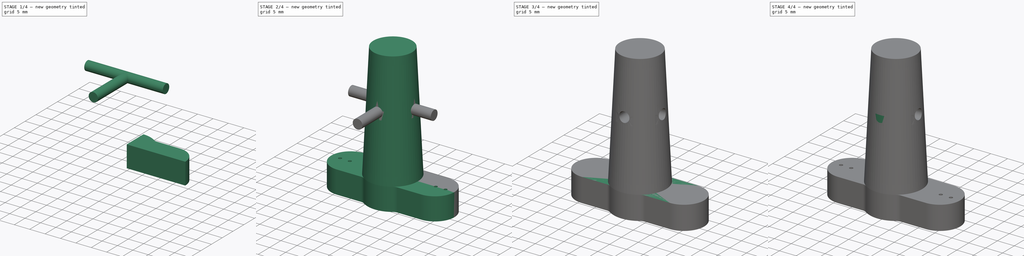
[diagram: build sequence overview — one tinted view per stage of 4, left to right]
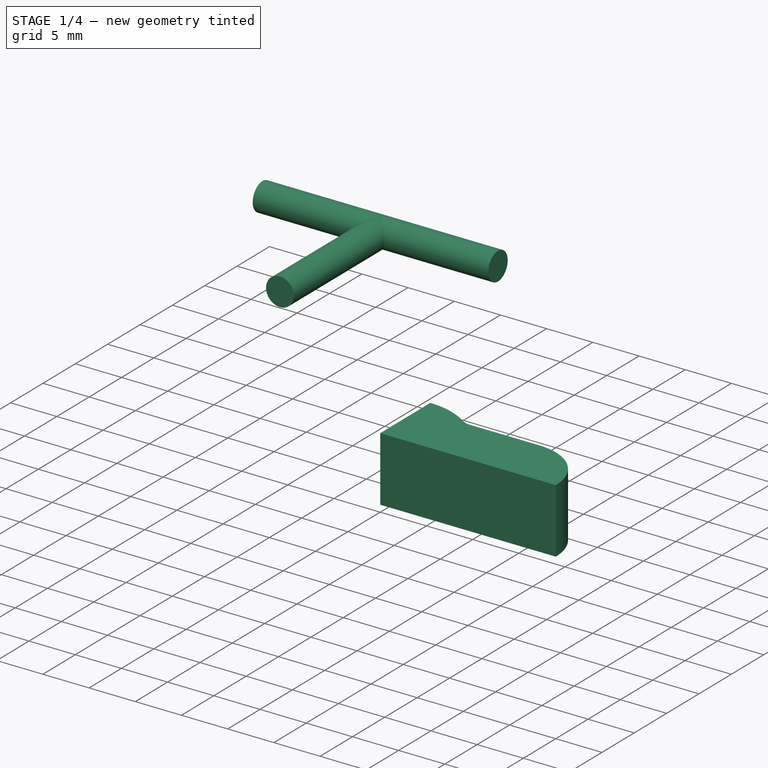
[diagram: stage 1 of 4 — iso view after this stage's code; geometry added in this stage tinted green]
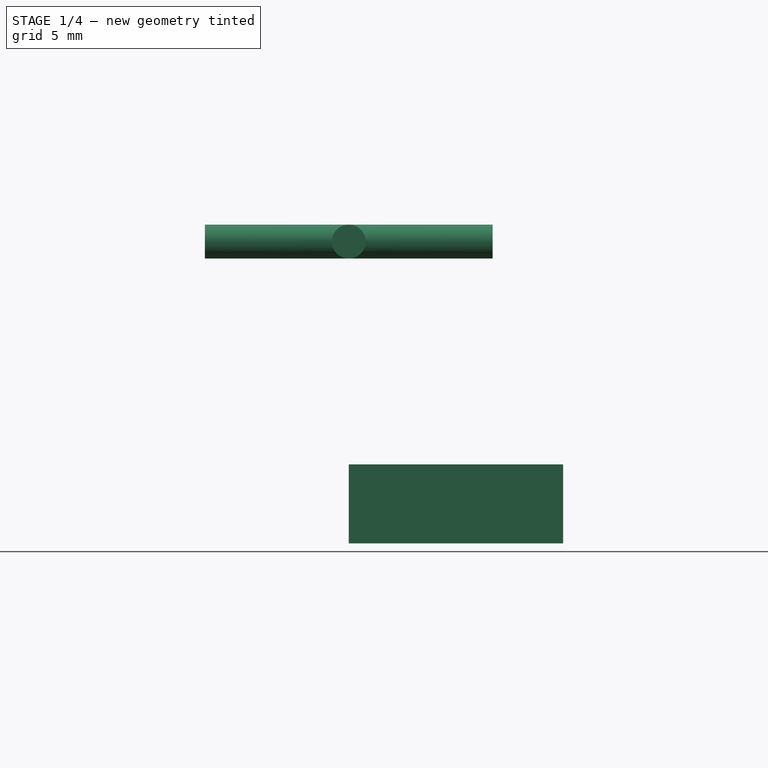
[diagram: stage 1 of 4 — front view after this stage's code; geometry added in this stage tinted green]
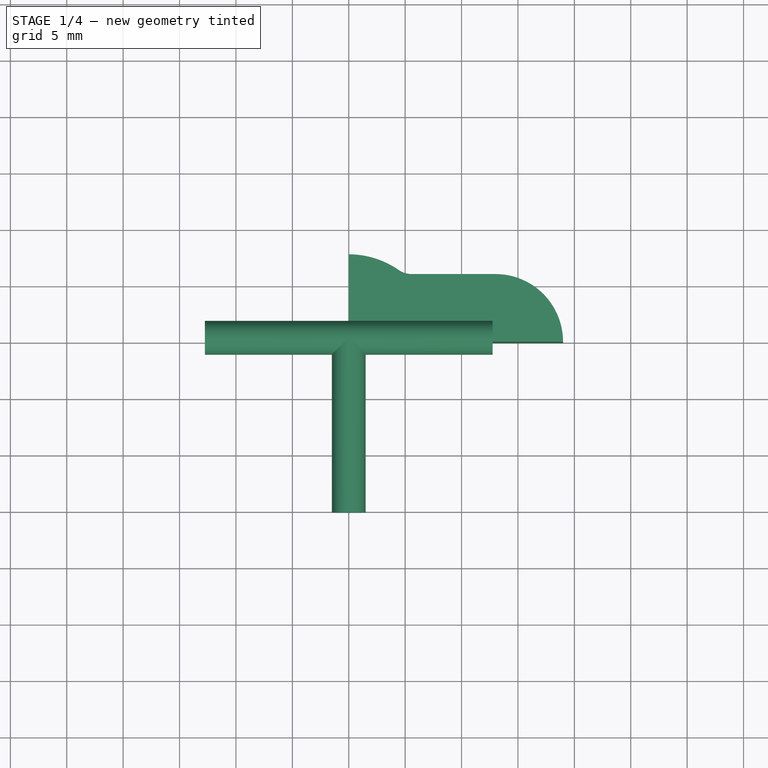
[diagram: stage 1 of 4 — top view after this stage's code; geometry added in this stage tinted green]
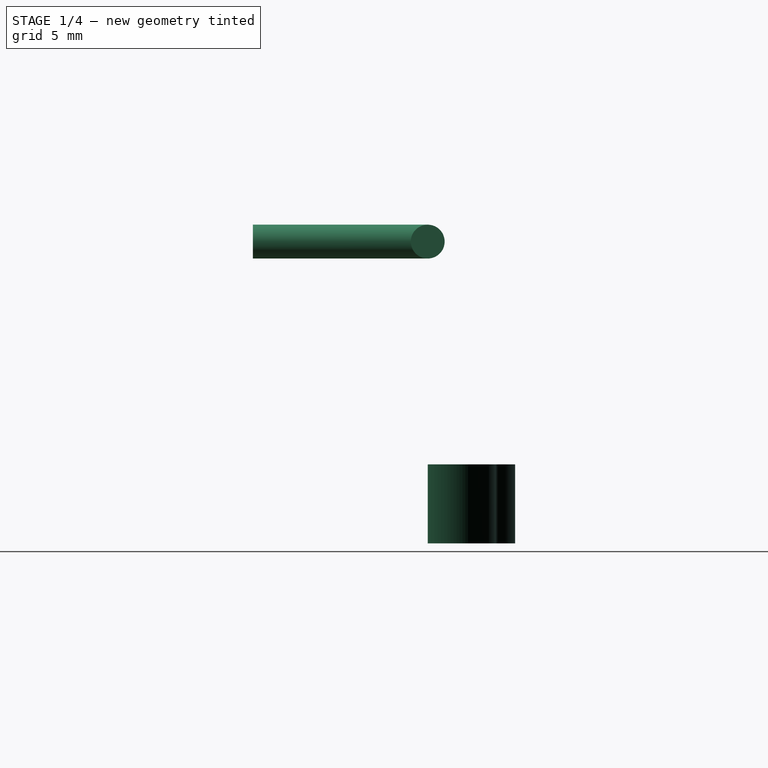
[diagram: stage 1 of 4 — right view after this stage's code; geometry added in this stage tinted green]
FCSTD DOCUMENT  (FreeCAD 0.19R24291 (Git))
Label: stopcock-servo-adaptor
License: All rights reserved
LicenseURL: http://en.wikipedia.org/wiki/All_rights_reserved
objects: Sketcher::SketchObject×9, PartDesign::Pad×4, PartDesign::Mirrored×4, PartDesign::Pocket×3, PartDesign::Body×3, PartDesign::MultiTransform×2, PartDesign::Revolution×2, App::Part×2, Spreadsheet::Sheet×1, Part::Cut×1
note: 37 computed .brp shape members not serialized (recipe doc carries the construction recipe); baked Part::Feature solids carry a one-line shape summary decoded from their .brp

FEATURE [PartDesign::Body] Body  label="stopcock-servo-adaptor"
  Group = -> [Sketch,Pad,MultiTransform,Mirrored,Mirrored001,Sketch001,Revolution,Sketch002,Pocket,Sketch007,Pocket002]
  Origin = -> Origin
  Tip = -> Pocket002
FEATURE [App::Part] Part  label="two-way"
  Group = -> [Body]
  Origin = -> Origin001
FEATURE [Sketcher::SketchObject] Sketch008
  FullyConstrained = true
  MapMode = 5
  Support = -> [XY_Plane]
  expr: Constraints[11] = Spreadsheet.handle_len / 2
  expr: Constraints[9] = Spreadsheet.stopcock_OD / 2
  expr: Constraints[10] = Spreadsheet.stopcock_width / 2
  sketch-geometry (6):
    g0: LineSegment StartX=5.57337 StartY=6 StartZ=0 EndX=13 EndY=6 EndZ=0
    g1: ArcOfCircle CenterX=0 CenterY=0 CenterZ=0 NormalX=0 NormalY=0 NormalZ=1 AngleXU=0 Radius=7.75 StartAngle=0.962308 EndAngle=1.5708
    g2: ArcOfCircle CenterX=13 CenterY=0 CenterZ=0 NormalX=0 NormalY=0 NormalZ=1 AngleXU=0 Radius=6 StartAngle=0 EndAngle=1.5708
    g3: ArcOfCircle CenterX=5.57337 CenterY=8 CenterZ=0 NormalX=0 NormalY=0 NormalZ=1 AngleXU=0 Radius=2 StartAngle=4.1039 EndAngle=4.71239
    g4: LineSegment StartX=0 StartY=7.75 StartZ=0 EndX=0 EndY=0 EndZ=0
    g5: LineSegment StartX=0 StartY=0 StartZ=0 EndX=19 EndY=0 EndZ=0
  constraints (16):
    c: Horizontal(g0)
    c: Coincident(g1,g-1)
    c: PointOnObject(g1,g-2)
    c: PointOnObject(g2,g-1)
    c: PointOnObject(g2,g-1)
    c: Tangent(g2,g0) = 1.5708
    c: Tangent(g0,g3) = -1.5708
    c: Tangent(g1,g3) = 1.5708
    c: Radius(g3) = 2
    c: Radius(g1) = 7.75
    c: DistanceY(g-1,g0) = 6
    c: DistanceX(g-1,g2) = 19
    c: Coincident(g4,g1)
    c: Coincident(g4,g1)
    c: Coincident(g5,g1)
    c: Coincident(g5,g2)
FEATURE [PartDesign::Pad] Pad001
  Direction = (1,1,1)
  Length = 7
  Length2 = 100
  Profile = -> Sketch008
  Type = 0
  expr: Length = Spreadsheet.handle_thicc
FEATURE [PartDesign::Body] Body001  label="stopcock-servo-adaptor001"
  Group = -> [Sketch008,Pad001,MultiTransform001,Mirrored002,Mirrored003,Sketch009,Revolution001,Sketch010,Pocket003]
  Origin = -> Origin003
  Tip = -> Pocket003
FEATURE [Sketcher::SketchObject] Sketch011
  FullyConstrained = true
  MapMode = 5
  Placement = pos=(0,0,0) rot=(0.57735,0.57735,0.57735;2.0944rad)
  Support = -> [YZ_Plane004]
  expr: Constraints[1] = Spreadsheet.drill_hole_height
  expr: Constraints[2] = Spreadsheet.drill_hole_diam / 2
  sketch-geometry (1):
    g0: Circle CenterX=0 CenterY=26.75 CenterZ=0 NormalX=0 NormalY=0 NormalZ=1 AngleXU=0 Radius=1.5
  constraints (3):
    c: PointOnObject(g0,g-2)
    c: DistanceY(g-1,g0) = 26.75
    c: Radius(g0) = 1.5
FEATURE [PartDesign::Pad] Pad002
  Direction = (1,1,1)
  Length = 25.5
  Length2 = 100
  Midplane = true
  Placement = pos=(0,0,0) rot=(0.57735,0.57735,0.57735;2.0944rad)
  Profile = -> Sketch011
  Type = 0
  expr: Length = Spreadsheet.stopcock_OD + 10
FEATURE [Sketcher::SketchObject] Sketch012
  FullyConstrained = true
  MapMode = 5
  Placement = pos=(0,0,0) rot=(1,0,0;1.5708rad)
  Support = -> [XZ_Plane004]
  expr: Constraints[2] = Spreadsheet.drill_hole_height
  expr: Constraints[1] = Spreadsheet.drill_hole_diam / 2
  sketch-geometry (1):
    g0: Circle CenterX=0 CenterY=26.75 CenterZ=0 NormalX=0 NormalY=0 NormalZ=1 AngleXU=0 Radius=1.5
  constraints (3):
    c: PointOnObject(g0,g-2)
    c: Radius(g0) = 1.5
    c: DistanceY(g-1,g0) = 26.75
FEATURE [PartDesign::Pad] Pad003
  BaseFeature = -> Pad002
  Direction = (1,1,1)
  Length = 15.5
  Length2 = 100
  Placement = pos=(0,0,0) rot=(0.57735,0.57735,0.57735;2.0944rad)
  Profile = -> Sketch012
  Type = 0
  expr: Length = Spreadsheet.stopcock_OD
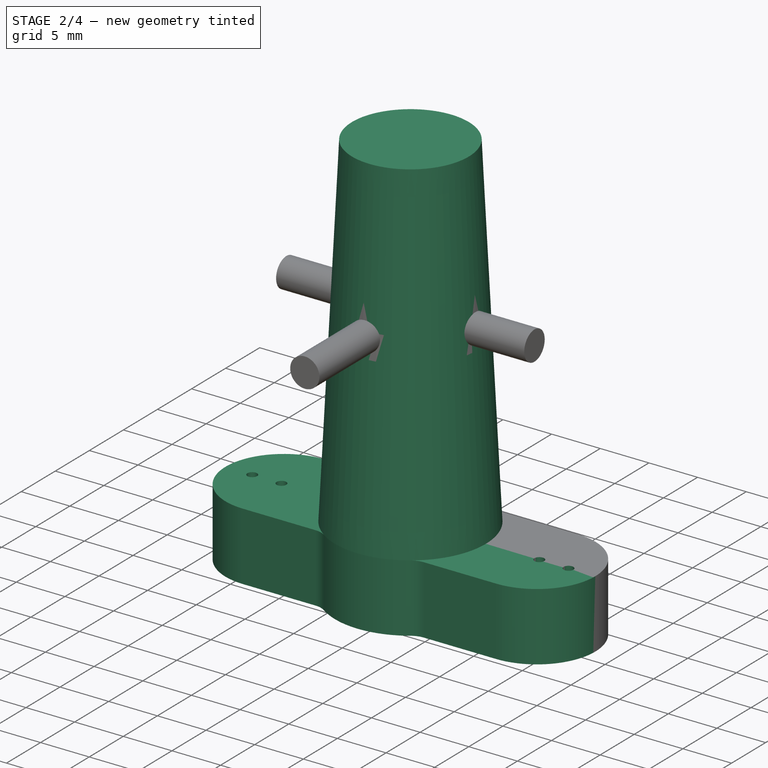
[diagram: stage 2 of 4 — iso view after this stage's code; geometry added in this stage tinted green]
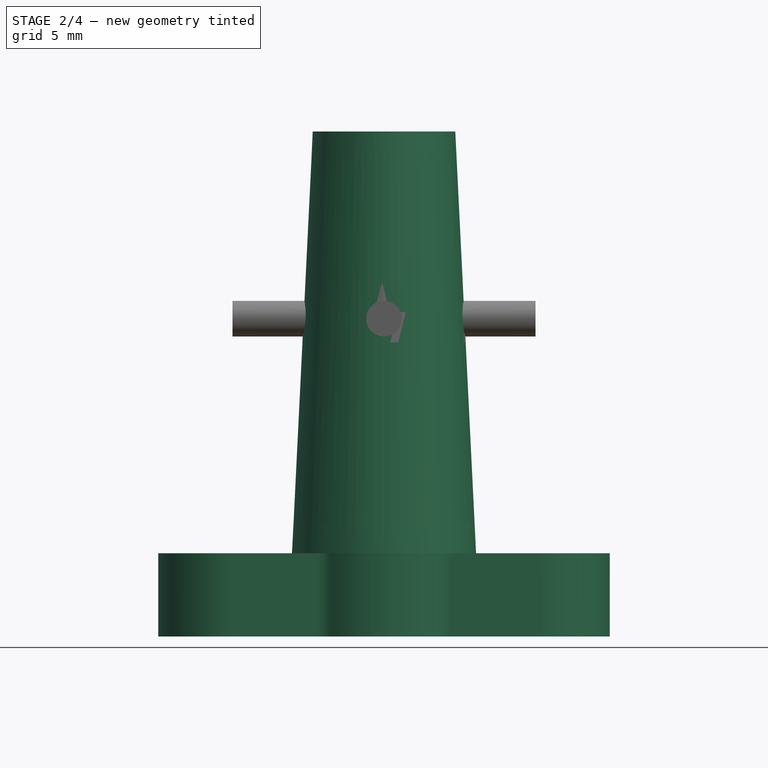
[diagram: stage 2 of 4 — front view after this stage's code; geometry added in this stage tinted green]
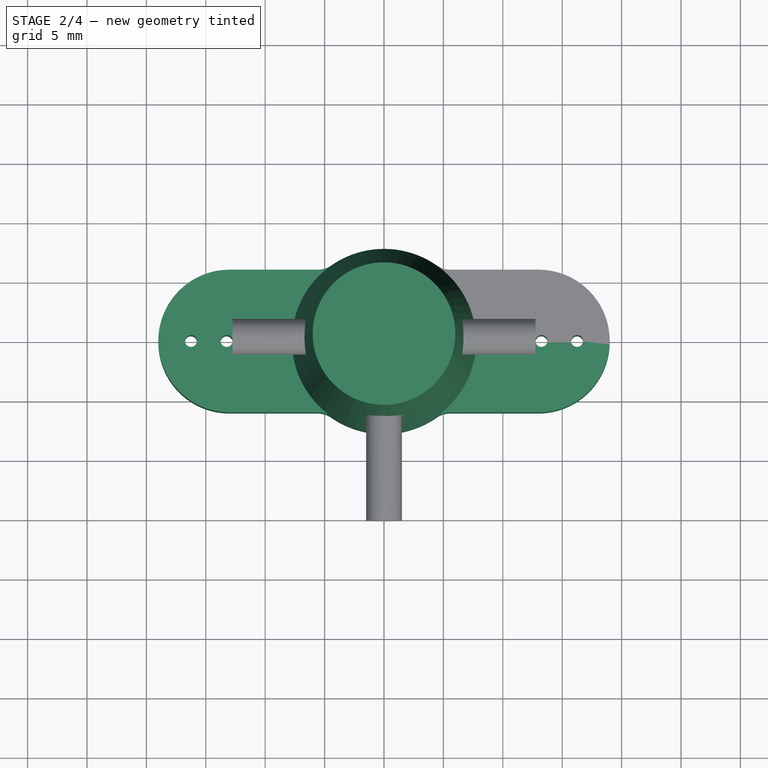
[diagram: stage 2 of 4 — top view after this stage's code; geometry added in this stage tinted green]
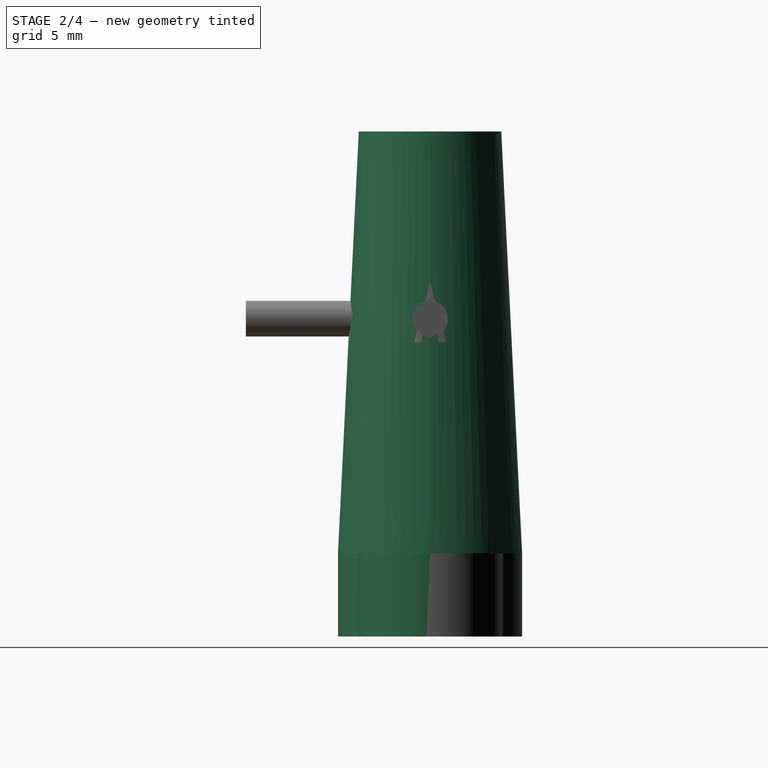
[diagram: stage 2 of 4 — right view after this stage's code; geometry added in this stage tinted green]
FEATURE [PartDesign::Mirrored] Mirrored002
  MirrorPlane = -> Sketch008 [V_Axis]
FEATURE [PartDesign::Mirrored] Mirrored003
  MirrorPlane = -> Sketch008 [H_Axis]
FEATURE [PartDesign::MultiTransform] MultiTransform001
  BaseFeature = -> Pad001
  Originals = -> [Pad001]
  Transformations = -> [Mirrored002,Mirrored003]
FEATURE [Sketcher::SketchObject] Sketch009
  FullyConstrained = true
  MapMode = 5
  Placement = pos=(0,0,0) rot=(1,0,0;1.5708rad)
  Support = -> [XZ_Plane]
  expr: Constraints[8] = Spreadsheet.handle_thicc
  expr: Constraints[9] = Spreadsheet.stopcock_len
  expr: Constraints[10] = Spreadsheet.stopcock_ID / 2
  expr: Constraints[11] = Spreadsheet.stopcock_OD / 2
  sketch-geometry (4):
    g0: LineSegment StartX=0 StartY=7 StartZ=0 EndX=0 EndY=42.5 EndZ=0
    g1: LineSegment StartX=0 StartY=42.5 StartZ=0 EndX=6 EndY=42.5 EndZ=0
    g2: LineSegment StartX=6 StartY=42.5 StartZ=0 EndX=7.75 EndY=7 EndZ=0
    g3: LineSegment StartX=7.75 StartY=7 StartZ=0 EndX=0 EndY=7 EndZ=0
  constraints (12):
    c: PointOnObject(g0,g-2)
    c: PointOnObject(g0,g-2)
    c: Coincident(g1,g0)
    c: Horizontal(g1)
    c: Coincident(g2,g1)
    c: Coincident(g3,g2)
    c: Coincident(g3,g0)
    c: Horizontal(g3)
    c: DistanceY(g-1,g0) = 7
    c: DistanceY(g0,g0) = 35.5
    c: DistanceX(g1,g1) = 6
    c: DistanceX(g3,g3) = 7.75
FEATURE [PartDesign::Revolution] Revolution001
  Angle = 360
  Axis = (0,-2e-16,1)
  Base = (0,0,0)
  BaseFeature = -> MultiTransform001
  Profile = -> Sketch009
  ReferenceAxis = -> Sketch009 [V_Axis]
FEATURE [Sketcher::SketchObject] Sketch010
  FullyConstrained = true
  MapMode = 5
  Support = -> [XY_Plane]
  sketch-geometry (4):
    g0: Circle CenterX=16.25 CenterY=0 CenterZ=0 NormalX=0 NormalY=0 NormalZ=1 AngleXU=0 Radius=0.5
    g1: Circle CenterX=13.25 CenterY=0 CenterZ=0 NormalX=0 NormalY=0 NormalZ=1 AngleXU=0 Radius=0.5
    g2: Circle CenterX=-13.25 CenterY=0 CenterZ=0 NormalX=0 NormalY=0 NormalZ=1 AngleXU=0 Radius=0.5
    g3: Circle CenterX=-16.25 CenterY=0 CenterZ=0 NormalX=0 NormalY=0 NormalZ=1 AngleXU=0 Radius=0.5
  constraints (10):
    c: PointOnObject(g0,g-1)
    c: PointOnObject(g1,g-1)
    c: Equal(g1,g3)
    c: Equal(g3,g2)
    c: Equal(g1,g0)
    c: Radius(g0) = 0.5
    c: Symmetric(g1,g2,g-2)
    c: Symmetric(g0,g3,g-1)
    c: DistanceX(g3,g0) = 32.5
    c: DistanceX(g2,g1) = 26.5
FEATURE [PartDesign::Pocket] Pocket003
  BaseFeature = -> Revolution001
  Length = 5
  Length2 = 100
  Profile = -> Sketch010
  Reversed = true
  Type = 1
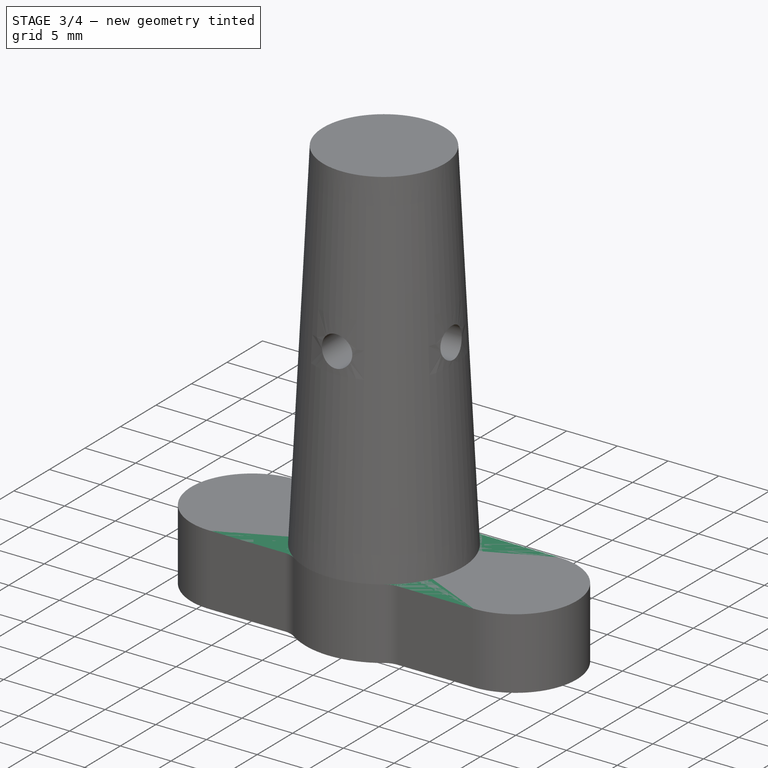
[diagram: stage 3 of 4 — iso view after this stage's code; geometry added in this stage tinted green]
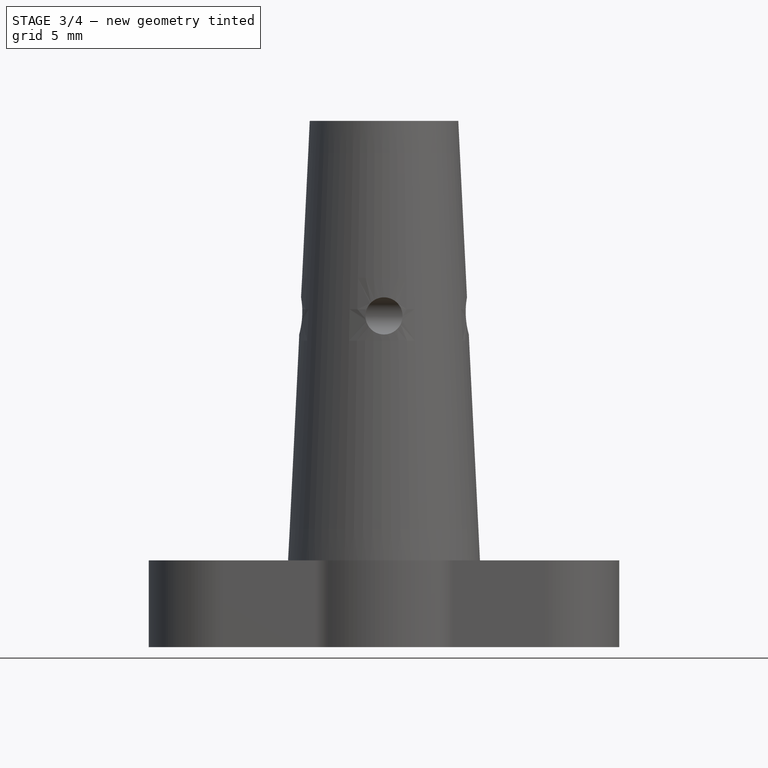
[diagram: stage 3 of 4 — front view after this stage's code; geometry added in this stage tinted green]
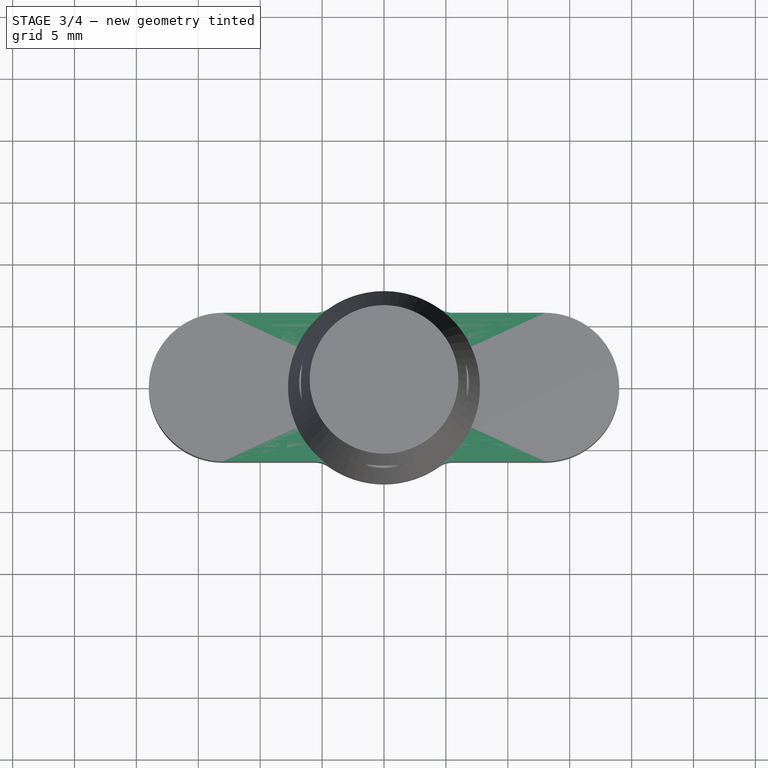
[diagram: stage 3 of 4 — top view after this stage's code; geometry added in this stage tinted green]
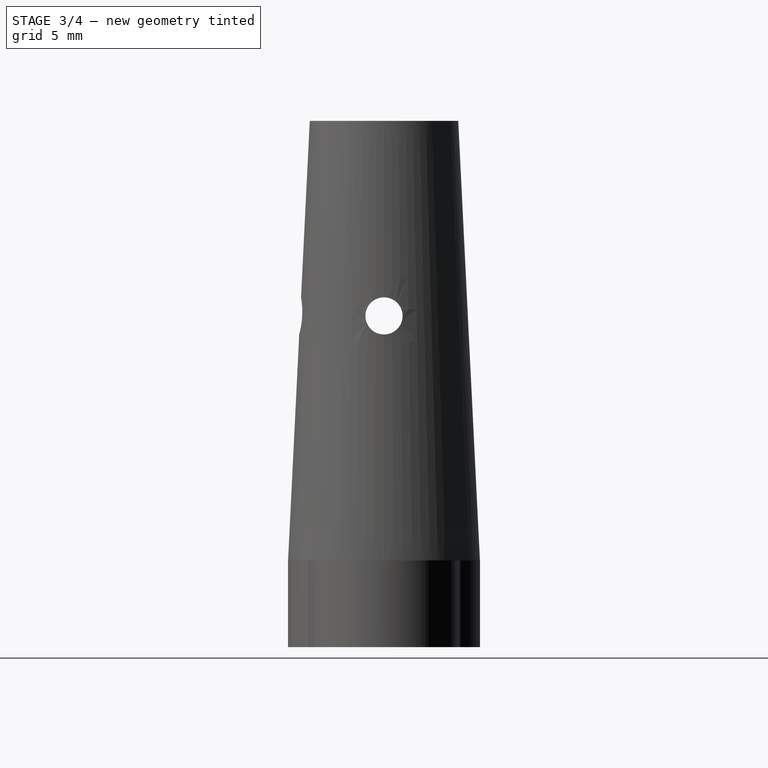
[diagram: stage 3 of 4 — right view after this stage's code; geometry added in this stage tinted green]
FEATURE [Sketcher::SketchObject] Sketch
  FullyConstrained = true
  MapMode = 5
  Support = -> [XY_Plane]
  expr: Constraints[10] = Spreadsheet.stopcock_width / 2
  expr: Constraints[9] = Spreadsheet.stopcock_OD / 2
  expr: Constraints[11] = Spreadsheet.handle_len / 2
  sketch-geometry (6):
    g0: LineSegment StartX=5.57337 StartY=6 StartZ=0 EndX=13 EndY=6 EndZ=0
    g1: ArcOfCircle CenterX=0 CenterY=0 CenterZ=0 NormalX=0 NormalY=0 NormalZ=1 AngleXU=0 Radius=7.75 StartAngle=0.962308 EndAngle=1.5708
    g2: ArcOfCircle CenterX=13 CenterY=0 CenterZ=0 NormalX=0 NormalY=0 NormalZ=1 AngleXU=0 Radius=6 StartAngle=0 EndAngle=1.5708
    g3: ArcOfCircle CenterX=5.57337 CenterY=8 CenterZ=0 NormalX=0 NormalY=0 NormalZ=1 AngleXU=0 Radius=2 StartAngle=4.1039 EndAngle=4.71239
    g4: LineSegment StartX=0 StartY=7.75 StartZ=0 EndX=0 EndY=0 EndZ=0
    g5: LineSegment StartX=0 StartY=0 StartZ=0 EndX=19 EndY=0 EndZ=0
  constraints (16):
    c: Horizontal(g0)
    c: Coincident(g1,g-1)
    c: PointOnObject(g1,g-2)
    c: PointOnObject(g2,g-1)
    c: PointOnObject(g2,g-1)
    c: Tangent(g2,g0) = 1.5708
    c: Tangent(g0,g3) = -1.5708
    c: Tangent(g1,g3) = 1.5708
    c: Radius(g3) = 2
    c: Radius(g1) = 7.75
    c: DistanceY(g-1,g0) = 6
    c: DistanceX(g-1,g2) = 19
    c: Coincident(g4,g1)
    c: Coincident(g4,g1)
    c: Coincident(g5,g1)
    c: Coincident(g5,g2)
FEATURE [PartDesign::Pad] Pad
  Direction = (1,1,1)
  Length = 7
  Length2 = 100
  Profile = -> Sketch
  Type = 0
  expr: Length = Spreadsheet.handle_thicc
FEATURE [Spreadsheet::Sheet] Spreadsheet
  cells = A1=variable; B1=value; A2=handle_thicc; B2(handle_thicc)=7; A3=handle_len; B3(handle_len)=38; A4=stopcock_OD; B4(stopcock_OD)==15 - offset_for_print; A5=stopcock_width; B5(stopcock_width)=12; A6=stopcock_ID; B6(stopcock_ID)==11.5 - offset_for_print; A7=offset_for_print; B7(offset_for_print)=-0.5; A8=stopcock_len; B8(stopcock_len)==35 - offset_for_print; A9=drill_hole_height; B9(drill_hole_height)==20 + offset_for_print / 2 + handle_thicc; A10=drill_hole_diam; B10(drill_hole_diam)=3
FEATURE [PartDesign::Mirrored] Mirrored
  MirrorPlane = -> Sketch [V_Axis]
FEATURE [PartDesign::Mirrored] Mirrored001
  MirrorPlane = -> Sketch [H_Axis]
FEATURE [PartDesign::MultiTransform] MultiTransform
  BaseFeature = -> Pad
  Originals = -> [Pad]
  Transformations = -> [Mirrored,Mirrored001]
FEATURE [PartDesign::Body] Body002  label="hole"
  Group = -> [Sketch011,Pad002,Sketch012,Pad003]
  Origin = -> Origin004
  Tip = -> Pad003
FEATURE [Part::Cut] Cut
  Base = -> Body001
  Tool = -> Body002
FEATURE [App::Part] Part001  label="three-way"
  Group = -> [Body001,Body002,Cut]
  Origin = -> Origin002
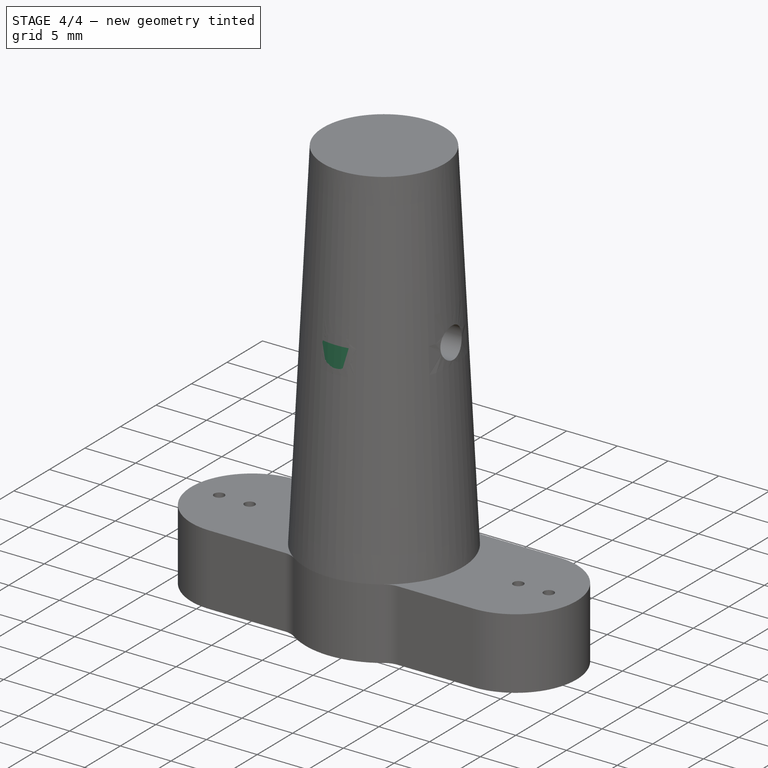
[diagram: stage 4 of 4 — iso view after this stage's code; geometry added in this stage tinted green]
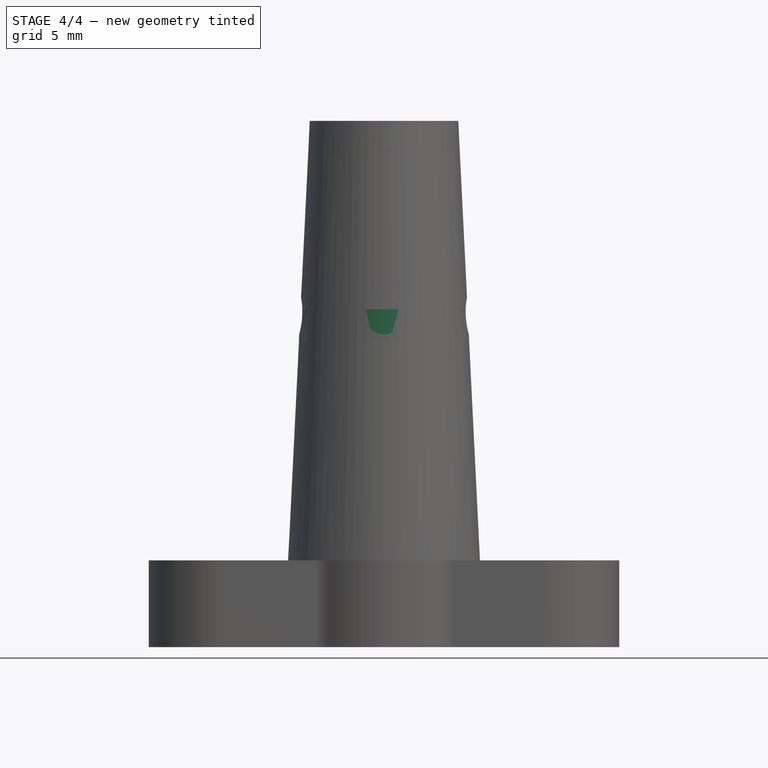
[diagram: stage 4 of 4 — front view after this stage's code; geometry added in this stage tinted green]
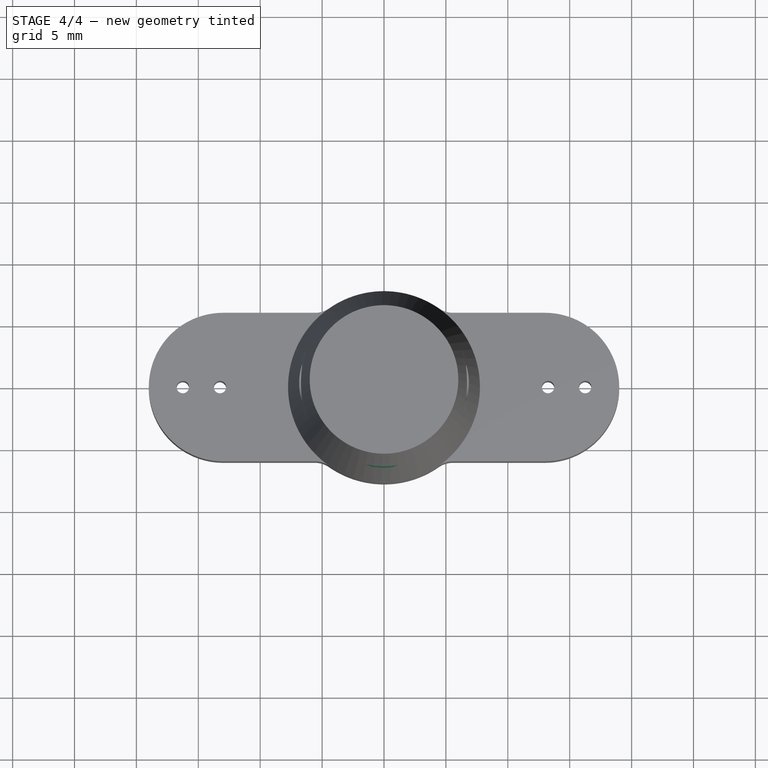
[diagram: stage 4 of 4 — top view after this stage's code; geometry added in this stage tinted green]
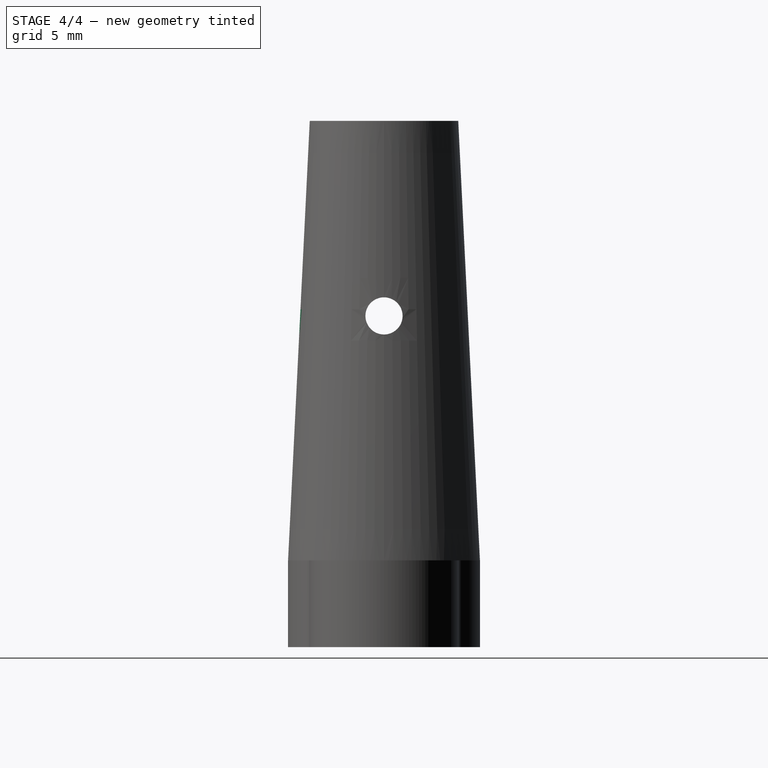
[diagram: stage 4 of 4 — right view after this stage's code; geometry added in this stage tinted green]
FEATURE [Sketcher::SketchObject] Sketch001
  FullyConstrained = true
  MapMode = 5
  Placement = pos=(0,0,0) rot=(1,0,0;1.5708rad)
  Support = -> [XZ_Plane]
  expr: Constraints[11] = Spreadsheet.stopcock_OD / 2
  expr: Constraints[10] = Spreadsheet.stopcock_ID / 2
  expr: Constraints[9] = Spreadsheet.stopcock_len
  expr: Constraints[8] = Spreadsheet.handle_thicc
  sketch-geometry (4):
    g0: LineSegment StartX=0 StartY=7 StartZ=0 EndX=0 EndY=42.5 EndZ=0
    g1: LineSegment StartX=0 StartY=42.5 StartZ=0 EndX=6 EndY=42.5 EndZ=0
    g2: LineSegment StartX=6 StartY=42.5 StartZ=0 EndX=7.75 EndY=7 EndZ=0
    g3: LineSegment StartX=7.75 StartY=7 StartZ=0 EndX=0 EndY=7 EndZ=0
  constraints (12):
    c: PointOnObject(g0,g-2)
    c: PointOnObject(g0,g-2)
    c: Coincident(g1,g0)
    c: Horizontal(g1)
    c: Coincident(g2,g1)
    c: Coincident(g3,g2)
    c: Coincident(g3,g0)
    c: Horizontal(g3)
    c: DistanceY(g-1,g0) = 7
    c: DistanceY(g0,g0) = 35.5
    c: DistanceX(g1,g1) = 6
    c: DistanceX(g3,g3) = 7.75
FEATURE [PartDesign::Revolution] Revolution
  Angle = 360
  Axis = (0,-2e-16,1)
  Base = (0,0,0)
  BaseFeature = -> MultiTransform
  Profile = -> Sketch001
  ReferenceAxis = -> Sketch001 [V_Axis]
FEATURE [Sketcher::SketchObject] Sketch002
  FullyConstrained = true
  MapMode = 5
  Support = -> [XY_Plane]
  sketch-geometry (4):
    g0: Circle CenterX=16.25 CenterY=0 CenterZ=0 NormalX=0 NormalY=0 NormalZ=1 AngleXU=0 Radius=0.5
    g1: Circle CenterX=13.25 CenterY=0 CenterZ=0 NormalX=0 NormalY=0 NormalZ=1 AngleXU=0 Radius=0.5
    g2: Circle CenterX=-13.25 CenterY=0 CenterZ=0 NormalX=0 NormalY=0 NormalZ=1 AngleXU=0 Radius=0.5
    g3: Circle CenterX=-16.25 CenterY=0 CenterZ=0 NormalX=0 NormalY=0 NormalZ=1 AngleXU=0 Radius=0.5
  constraints (10):
    c: PointOnObject(g0,g-1)
    c: PointOnObject(g1,g-1)
    c: Equal(g1,g3)
    c: Equal(g3,g2)
    c: Equal(g1,g0)
    c: Radius(g0) = 0.5
    c: Symmetric(g1,g2,g-2)
    c: Symmetric(g0,g3,g-1)
    c: DistanceX(g3,g0) = 32.5
    c: DistanceX(g2,g1) = 26.5
FEATURE [PartDesign::Pocket] Pocket
  BaseFeature = -> Revolution
  Length = 5
  Length2 = 100
  Profile = -> Sketch002
  Reversed = true
  Type = 1
FEATURE [Sketcher::SketchObject] Sketch007
  FullyConstrained = true
  MapMode = 5
  Placement = pos=(0,0,0) rot=(0.57735,0.57735,0.57735;2.0944rad)
  Support = -> [YZ_Plane]
  expr: Constraints[2] = Spreadsheet.drill_hole_diam / 2
  expr: Constraints[1] = Spreadsheet.drill_hole_height
  sketch-geometry (1):
    g0: Circle CenterX=0 CenterY=26.75 CenterZ=0 NormalX=0 NormalY=0 NormalZ=1 AngleXU=0 Radius=1.5
  constraints (3):
    c: PointOnObject(g0,g-2)
    c: DistanceY(g-1,g0) = 26.75
    c: Radius(g0) = 1.5
FEATURE [PartDesign::Pocket] Pocket002
  BaseFeature = -> Pocket
  Length = 5
  Length2 = 100
  Midplane = true
  Profile = -> Sketch007
  Type = 1
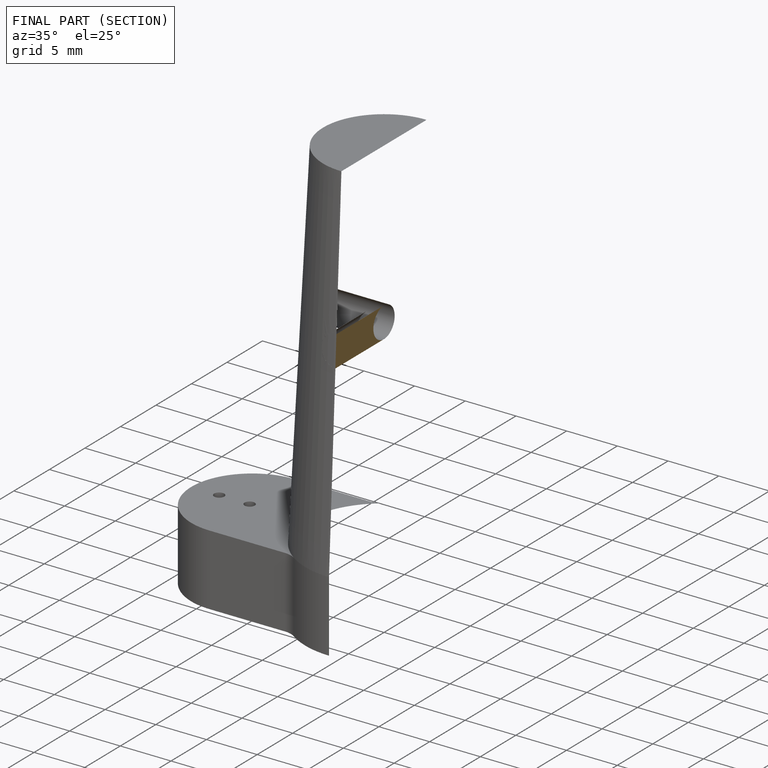
[diagram: finished part — half-section view (interior)]
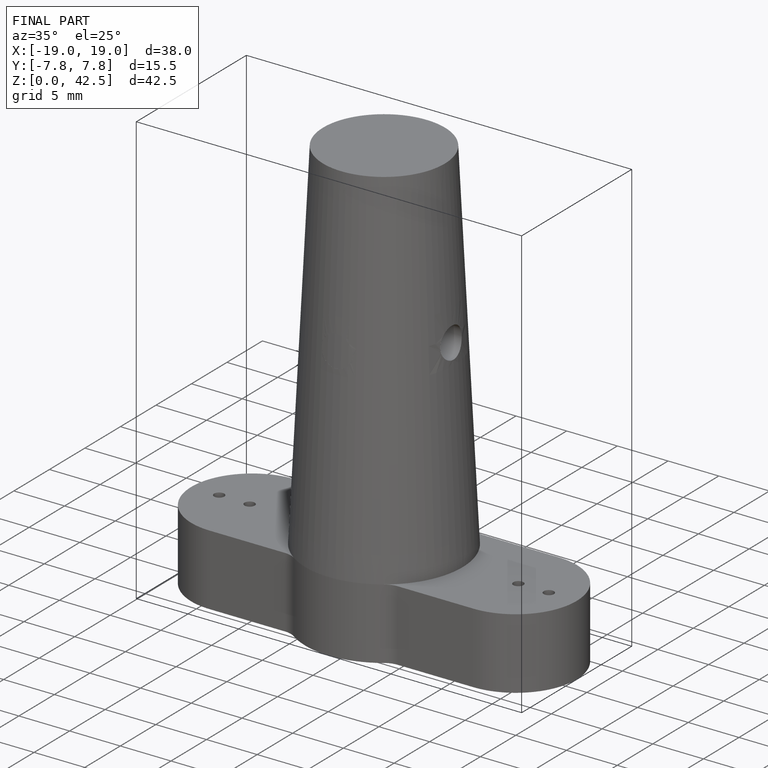
[diagram: finished part — iso view with bounding-box wireframe]
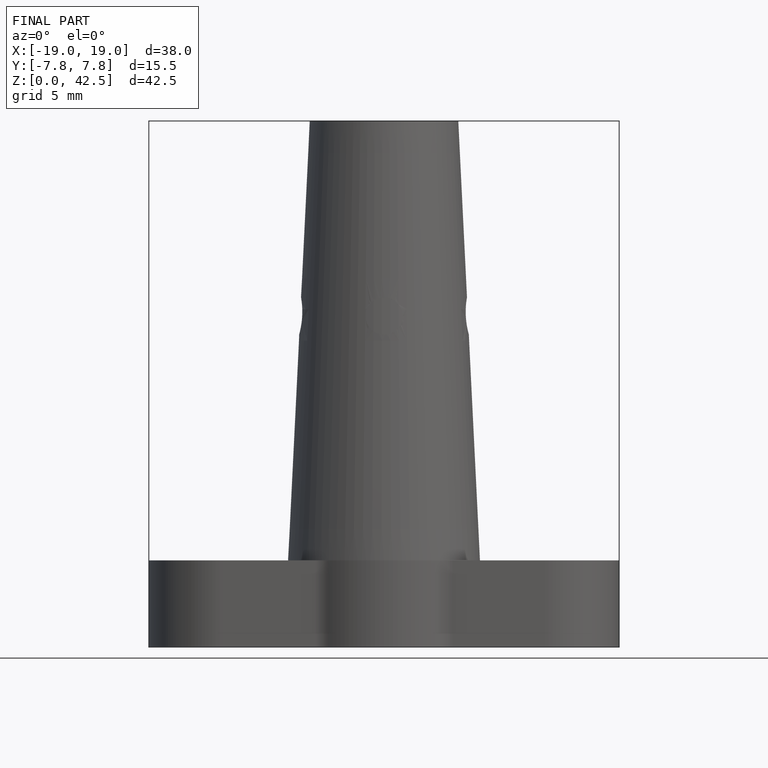
[diagram: finished part — front view with bounding-box wireframe]
